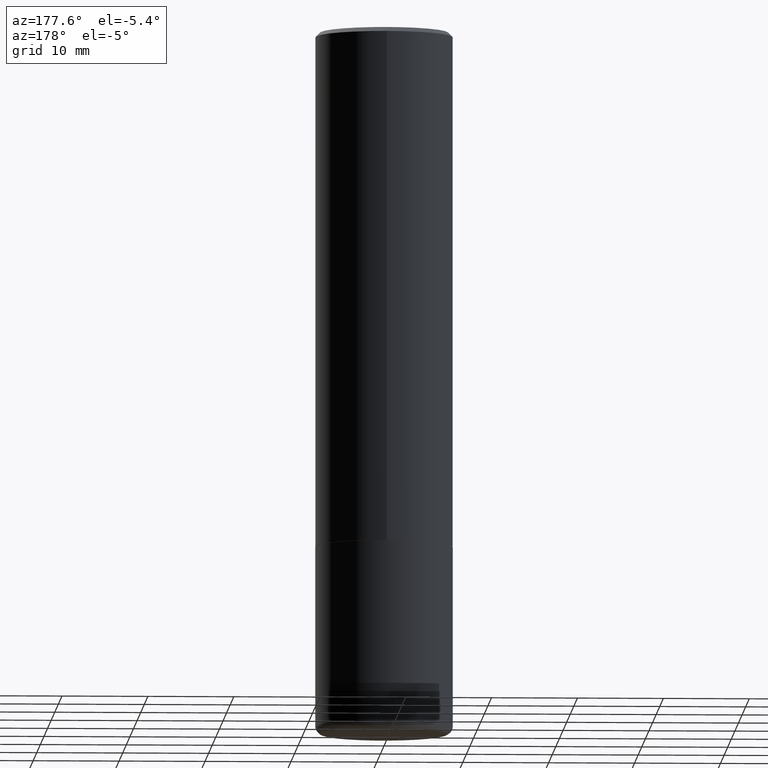
[diagram: clean part render]
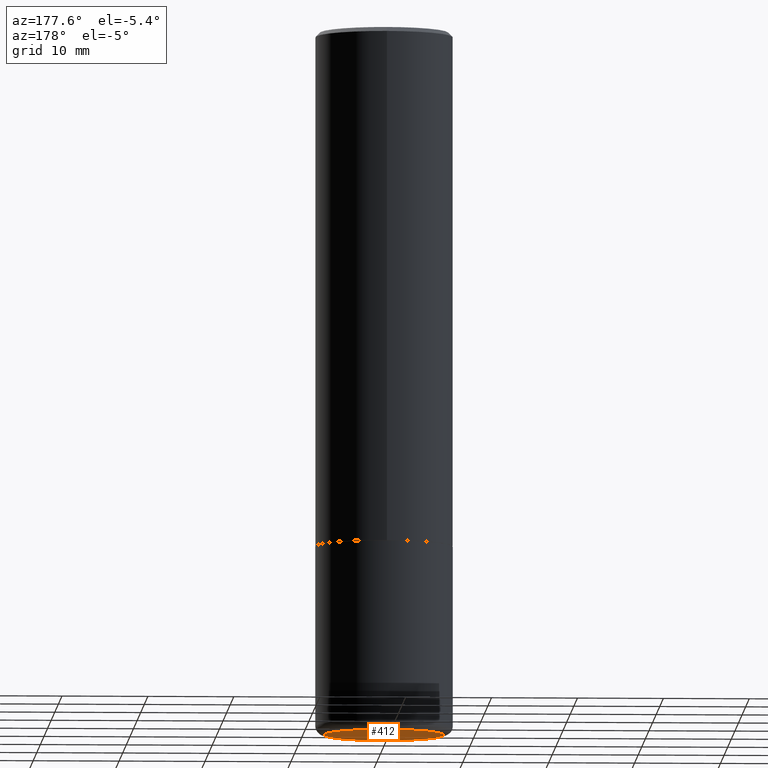
[diagram: same view with one face highlighted and labeled with its STEP entity id]
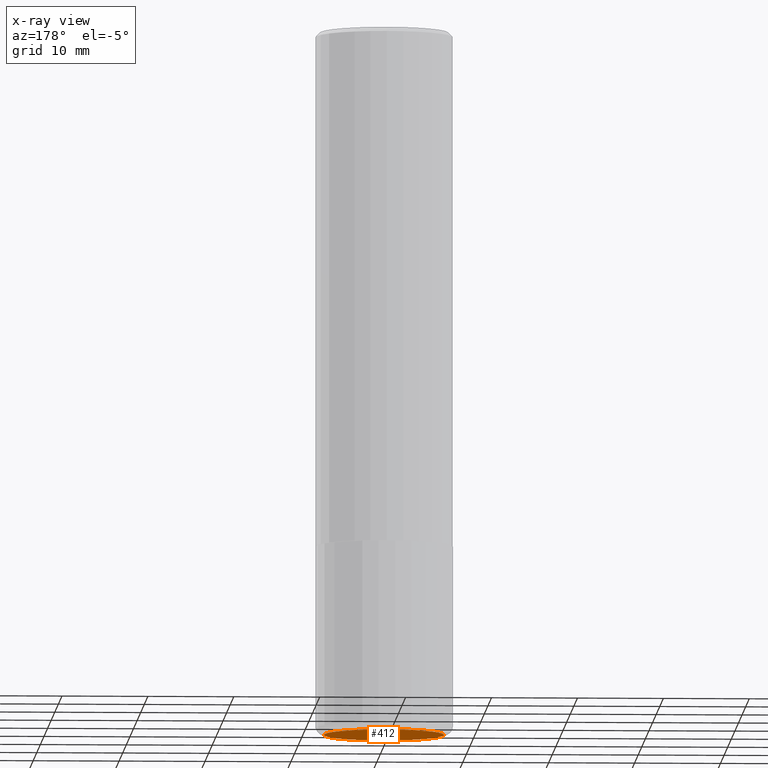
[diagram: x-ray of the same camera — body ghosted, the highlighted face saturated]
A machine part, auxiliary view. The second image highlights one B-rep face of the part: STEP entity #412.
The next image is the same camera in x-ray: the body ghosted, the highlighted face saturated — about 0% of this face is hidden behind the body in this view.
In plain terms, the highlighted planar face has unit normal (0, -0, -1).
Its self-contained STEP definition (entity closure, byte-faithful):
#53 = DIRECTION ( 'NONE',  ( 1.000000000000000000, -6.982962677686268288E-15, 0.000000000000000000 ) ) ;
#59 = FACE_OUTER_BOUND ( 'NONE', #224, .T. ) ;
#65 = DIRECTION ( 'NONE',  ( 2.438088387897960049E-29, -3.491481338843145188E-15, -1.000000000000000000 ) ) ;
#81 = EDGE_CURVE ( 'NONE', #85, #418, #382, .T. ) ;
#85 = VERTEX_POINT ( 'NONE', #127 ) ;
#96 = DIRECTION ( 'NONE',  ( -2.445468806185136597E-29, 3.491481338843145583E-15, 1.000000000000000000 ) ) ;
#118 = CARTESIAN_POINT ( 'NONE',  ( 7.894706947007478239E-29, -1.127154920618732880E-14, -3.228300000000000836 ) ) ;
#124 = CARTESIAN_POINT ( 'NONE',  ( 7.894706947007478239E-29, -1.127154920618732880E-14, -3.228300000000000836 ) ) ;
#127 = CARTESIAN_POINT ( 'NONE',  ( -0.2755500000000000171, -9.104889596480423310E-15, -3.228300000000000836 ) ) ;
#129 = CARTESIAN_POINT ( 'NONE',  ( 3.424787283148176621E-29, -1.767272857686150090E-14, -3.228299999999999947 ) ) ;
#131 = CIRCLE ( 'NONE', #368, 0.2755500000000000171 ) ;
#132 = ORIENTED_EDGE ( 'NONE', *, *, #81, .F. ) ;
#146 = AXIS2_PLACEMENT_3D ( 'NONE', #124, #256, #248 ) ;
#189 = DIRECTION ( 'NONE',  ( -1.000000000000000000, 6.982962677686265922E-15, -4.876176775795935793E-29 ) ) ;
#195 = EDGE_CURVE ( 'NONE', #418, #85, #131, .T. ) ;
#224 = EDGE_LOOP ( 'NONE', ( #327, #132 ) ) ;
#248 = DIRECTION ( 'NONE',  ( 1.000000000000000000, -6.982962677686268288E-15, 0.000000000000000000 ) ) ;
#256 = DIRECTION ( 'NONE',  ( -2.445468806185136597E-29, 3.491481338843145583E-15, 1.000000000000000000 ) ) ;
#262 = CARTESIAN_POINT ( 'NONE',  ( 0.2755500000000000171, -1.319570457202378025E-14, -3.228300000000000836 ) ) ;
#327 = ORIENTED_EDGE ( 'NONE', *, *, #195, .F. ) ;
#368 = AXIS2_PLACEMENT_3D ( 'NONE', #118, #96, #53 ) ;
#382 = CIRCLE ( 'NONE', #146, 0.2755500000000000171 ) ;
#400 = AXIS2_PLACEMENT_3D ( 'NONE', #129, #65, #189 ) ;
#412 = ADVANCED_FACE ( 'NONE', ( #59 ), #415, .T. ) ;
#415 = PLANE ( 'NONE',  #400 ) ;
#418 = VERTEX_POINT ( 'NONE', #262 ) ;